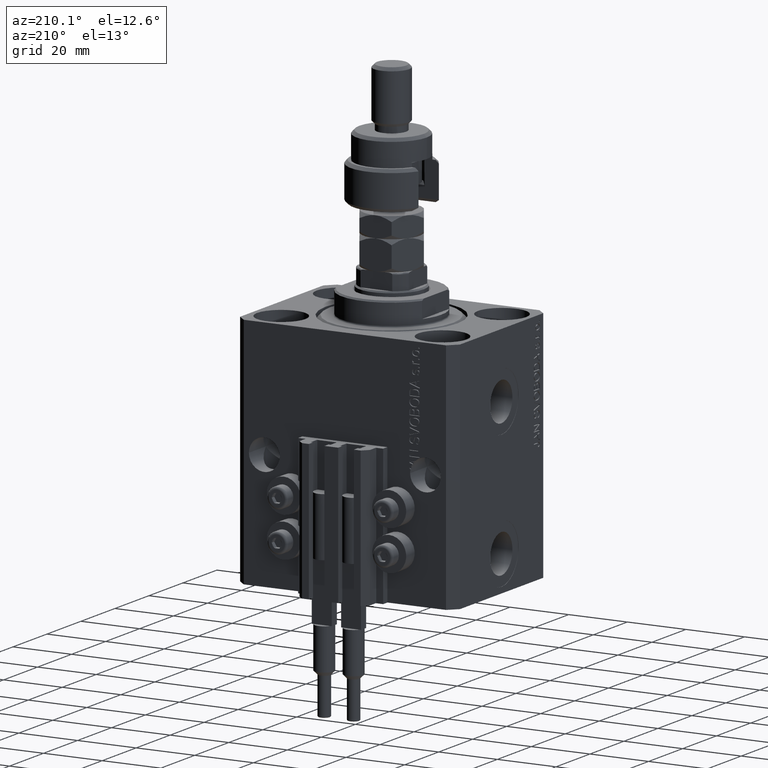
[diagram: clean part render]
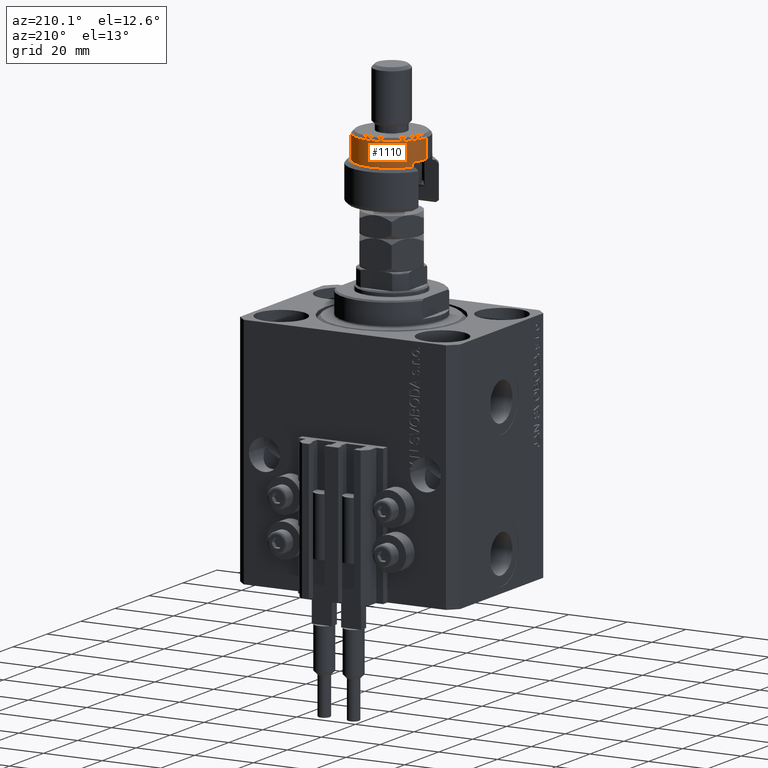
[diagram: same view with one face highlighted and labeled with its STEP entity id]
A machine part, auxiliary view. The second image highlights one B-rep face of the part: STEP entity #1110.
In plain terms, the highlighted cylindrical surface (partial cylindrical patch) has radius 12 mm, axis along (-0, -0, -1).
Its self-contained STEP definition (entity closure, byte-faithful):
#238 = EDGE_CURVE ( 'NONE', #16004, #14694, #46536, .T. ) ;
#1110 = ADVANCED_FACE ( 'NONE', ( #11165 ), #41784, .T. ) ;
#1354 = DIRECTION ( 'NONE',  ( 0.000000000000000000, 0.000000000000000000, 1.000000000000000000 ) ) ;
#1783 = VECTOR ( 'NONE', #26338, 1000.000000000000000 ) ;
#3019 = DIRECTION ( 'NONE',  ( -0.000000000000000000, -0.000000000000000000, -1.000000000000000000 ) ) ;
#3194 = DIRECTION ( 'NONE',  ( -0.000000000000000000, -0.000000000000000000, -1.000000000000000000 ) ) ;
#3268 = CARTESIAN_POINT ( 'NONE',  ( 0.000000000000000000, 0.000000000000000000, 22.00000000000000000 ) ) ;
#5456 = DIRECTION ( 'NONE',  ( 1.000000000000000000, 0.000000000000000000, 0.000000000000000000 ) ) ;
#6110 = CIRCLE ( 'NONE', #39510, 12.00000000000000178 ) ;
#6331 = DIRECTION ( 'NONE',  ( -1.000000000000000000, 0.000000000000000000, 0.000000000000000000 ) ) ;
#7004 = AXIS2_PLACEMENT_3D ( 'NONE', #21617, #10413, #6331 ) ;
#8662 = AXIS2_PLACEMENT_3D ( 'NONE', #3268, #3019, #18547 ) ;
#9191 = VERTEX_POINT ( 'NONE', #36568 ) ;
#9757 = VERTEX_POINT ( 'NONE', #46433 ) ;
#10413 = DIRECTION ( 'NONE',  ( 0.000000000000000000, 0.000000000000000000, -1.000000000000000000 ) ) ;
#11165 = FACE_OUTER_BOUND ( 'NONE', #13688, .T. ) ;
#12071 = ORIENTED_EDGE ( 'NONE', *, *, #28561, .F. ) ;
#13371 = EDGE_CURVE ( 'NONE', #9757, #42808, #49346, .T. ) ;
#13507 = VECTOR ( 'NONE', #3194, 1000.000000000000000 ) ;
#13688 = EDGE_LOOP ( 'NONE', ( #26151, #44415, #42001, #29611, #12071, #45779 ) ) ;
#13832 = CARTESIAN_POINT ( 'NONE',  ( -12.00000000000000178, 0.000000000000000000, 20.99999999999998224 ) ) ;
#14694 = VERTEX_POINT ( 'NONE', #48612 ) ;
#15353 = EDGE_CURVE ( 'NONE', #31177, #9191, #38166, .T. ) ;
#16004 = VERTEX_POINT ( 'NONE', #13832 ) ;
#16656 = CARTESIAN_POINT ( 'NONE',  ( 0.000000000000000000, 0.000000000000000000, 20.99999999999998224 ) ) ;
#16887 = DIRECTION ( 'NONE',  ( 1.000000000000000000, 0.000000000000000000, 0.000000000000000000 ) ) ;
#17128 = CARTESIAN_POINT ( 'NONE',  ( 0.000000000000000000, 0.000000000000000000, 13.00000000000000000 ) ) ;
#17408 = DIRECTION ( 'NONE',  ( 0.000000000000000000, 0.000000000000000000, -1.000000000000000000 ) ) ;
#18547 = DIRECTION ( 'NONE',  ( -1.000000000000000000, 0.000000000000000000, 0.000000000000000000 ) ) ;
#18773 = CARTESIAN_POINT ( 'NONE',  ( 12.00000000000000178, 1.469576158976824144E-15, 22.00000000000000000 ) ) ;
#21617 = CARTESIAN_POINT ( 'NONE',  ( 0.000000000000000000, 0.000000000000000000, 14.50000000000000000 ) ) ;
#26151 = ORIENTED_EDGE ( 'NONE', *, *, #26734, .T. ) ;
#26338 = DIRECTION ( 'NONE',  ( 0.000000000000000000, 0.000000000000000000, 1.000000000000000000 ) ) ;
#26734 = EDGE_CURVE ( 'NONE', #16004, #31177, #6110, .T. ) ;
#27780 = VECTOR ( 'NONE', #30765, 1000.000000000000000 ) ;
#28561 = EDGE_CURVE ( 'NONE', #14694, #42808, #33851, .T. ) ;
#28883 = CARTESIAN_POINT ( 'NONE',  ( 12.00000000000000178, 1.469576158976824144E-15, 20.99999999999998224 ) ) ;
#29611 = ORIENTED_EDGE ( 'NONE', *, *, #13371, .T. ) ;
#30765 = DIRECTION ( 'NONE',  ( -0.000000000000000000, -0.000000000000000000, -1.000000000000000000 ) ) ;
#31177 = VERTEX_POINT ( 'NONE', #28883 ) ;
#33672 = CIRCLE ( 'NONE', #48386, 12.00000000000000178 ) ;
#33851 = CIRCLE ( 'NONE', #7004, 12.00000000000000178 ) ;
#34062 = CARTESIAN_POINT ( 'NONE',  ( -10.39230484541326582, 5.999999999999998224, 14.50000000000000000 ) ) ;
#36568 = CARTESIAN_POINT ( 'NONE',  ( 12.00000000000000178, 1.469576158976824144E-15, 13.00000000000000000 ) ) ;
#38116 = CARTESIAN_POINT ( 'NONE',  ( -12.00000000000000178, 0.000000000000000000, 22.00000000000000000 ) ) ;
#38166 = LINE ( 'NONE', #18773, #27780 ) ;
#39510 = AXIS2_PLACEMENT_3D ( 'NONE', #16656, #17408, #5456 ) ;
#41784 = CYLINDRICAL_SURFACE ( 'NONE', #8662, 12.00000000000000178 ) ;
#42001 = ORIENTED_EDGE ( 'NONE', *, *, #50024, .T. ) ;
#42808 = VERTEX_POINT ( 'NONE', #34062 ) ;
#44415 = ORIENTED_EDGE ( 'NONE', *, *, #15353, .T. ) ;
#45779 = ORIENTED_EDGE ( 'NONE', *, *, #238, .F. ) ;
#46433 = CARTESIAN_POINT ( 'NONE',  ( -10.39230484541326760, 6.000000000000000000, 13.00000000000000000 ) ) ;
#46536 = LINE ( 'NONE', #38116, #13507 ) ;
#48386 = AXIS2_PLACEMENT_3D ( 'NONE', #17128, #1354, #16887 ) ;
#48612 = CARTESIAN_POINT ( 'NONE',  ( -12.00000000000000178, 0.000000000000000000, 14.50000000000000000 ) ) ;
#49346 = LINE ( 'NONE', #50100, #1783 ) ;
#50024 = EDGE_CURVE ( 'NONE', #9191, #9757, #33672, .T. ) ;
#50100 = CARTESIAN_POINT ( 'NONE',  ( -10.39230484541326760, 6.000000000000000000, 22.00000000000000000 ) ) ;